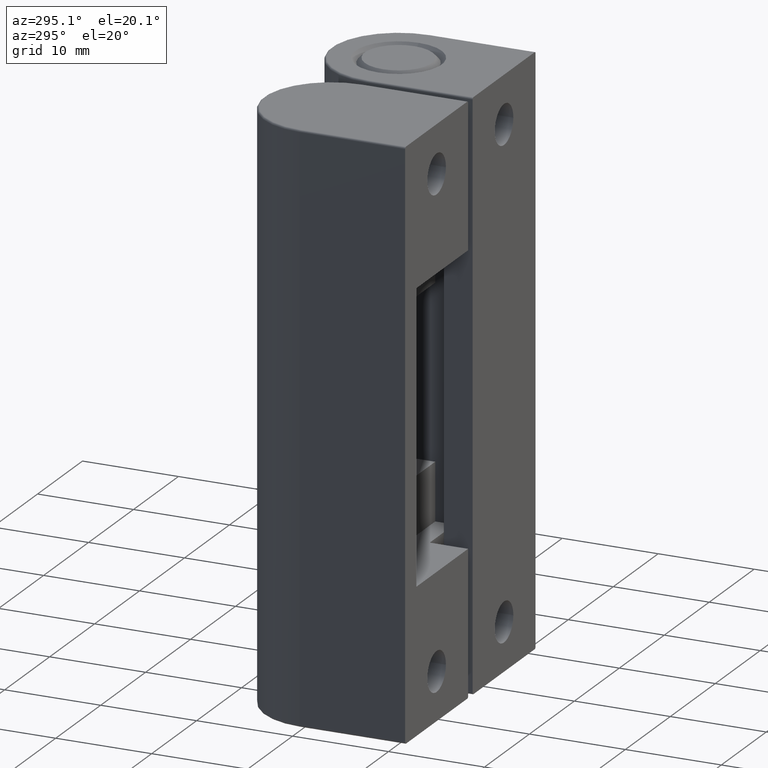
[diagram: clean part render]
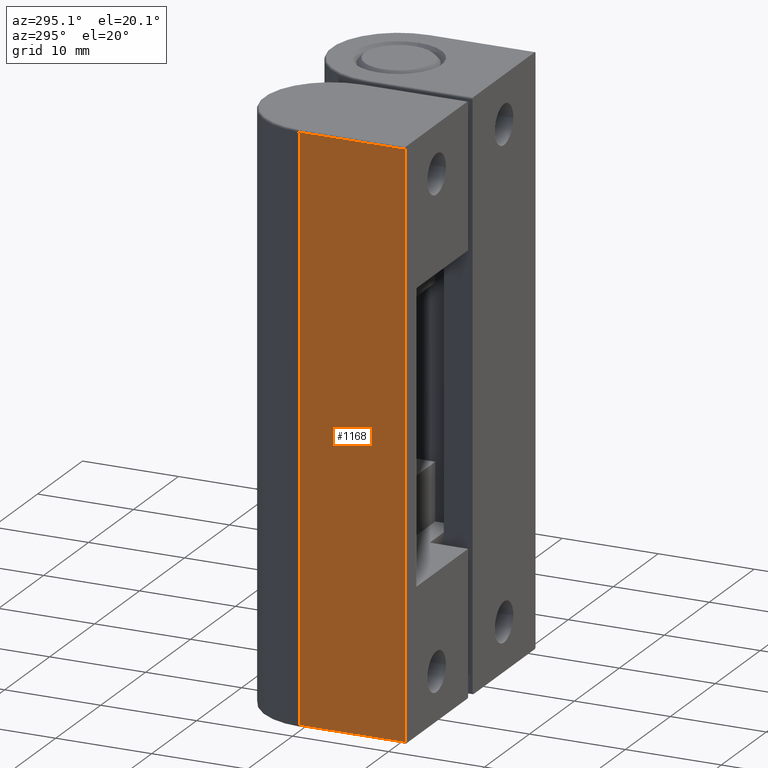
[diagram: same view with one face highlighted and labeled with its STEP entity id]
A machine part, auxiliary view. The second image highlights one B-rep face of the part: STEP entity #1168.
In plain terms, the highlighted planar face has unit normal (-1, 0, 0).
Its self-contained STEP definition (entity closure, byte-faithful):
#69=PLANE('',#1263);
#118=FACE_OUTER_BOUND('',#190,.T.);
#190=EDGE_LOOP('',(#869,#870,#871,#872));
#293=LINE('',#1830,#384);
#301=LINE('',#1855,#392);
#303=LINE('',#1864,#394);
#304=LINE('',#1865,#395);
#384=VECTOR('',#1436,11.);
#392=VECTOR('',#1462,59.6);
#394=VECTOR('',#1472,59.6);
#395=VECTOR('',#1473,11.);
#548=VERTEX_POINT('',#1827);
#549=VERTEX_POINT('',#1829);
#557=VERTEX_POINT('',#1854);
#560=VERTEX_POINT('',#1863);
#666=EDGE_CURVE('',#548,#549,#293,.T.);
#679=EDGE_CURVE('',#549,#557,#301,.T.);
#684=EDGE_CURVE('',#560,#548,#303,.T.);
#685=EDGE_CURVE('',#557,#560,#304,.T.);
#869=ORIENTED_EDGE('',*,*,#666,.F.);
#870=ORIENTED_EDGE('',*,*,#684,.F.);
#871=ORIENTED_EDGE('',*,*,#685,.F.);
#872=ORIENTED_EDGE('',*,*,#679,.F.);
#1168=ADVANCED_FACE('',(#118),#69,.T.);
#1263=AXIS2_PLACEMENT_3D('',#1862,#1470,#1471);
#1436=DIRECTION('',(0.,1.,0.));
#1462=DIRECTION('',(0.,0.,1.));
#1470=DIRECTION('center_axis',(-1.,0.,0.));
#1471=DIRECTION('ref_axis',(0.,1.,0.));
#1472=DIRECTION('',(0.,0.,-1.));
#1473=DIRECTION('',(0.,-1.,0.));
#1827=CARTESIAN_POINT('',(-7.,0.,-59.8));
#1829=CARTESIAN_POINT('',(-7.,11.,-59.8));
#1830=CARTESIAN_POINT('',(-7.,2.75,-59.8));
#1854=CARTESIAN_POINT('',(-7.,11.,-0.2));
#1855=CARTESIAN_POINT('',(-7.,11.,0.));
#1862=CARTESIAN_POINT('Origin',(-7.,0.,0.));
#1863=CARTESIAN_POINT('',(-7.,0.,-0.2));
#1864=CARTESIAN_POINT('',(-7.,0.,0.));
#1865=CARTESIAN_POINT('',(-7.,2.75,-0.2));